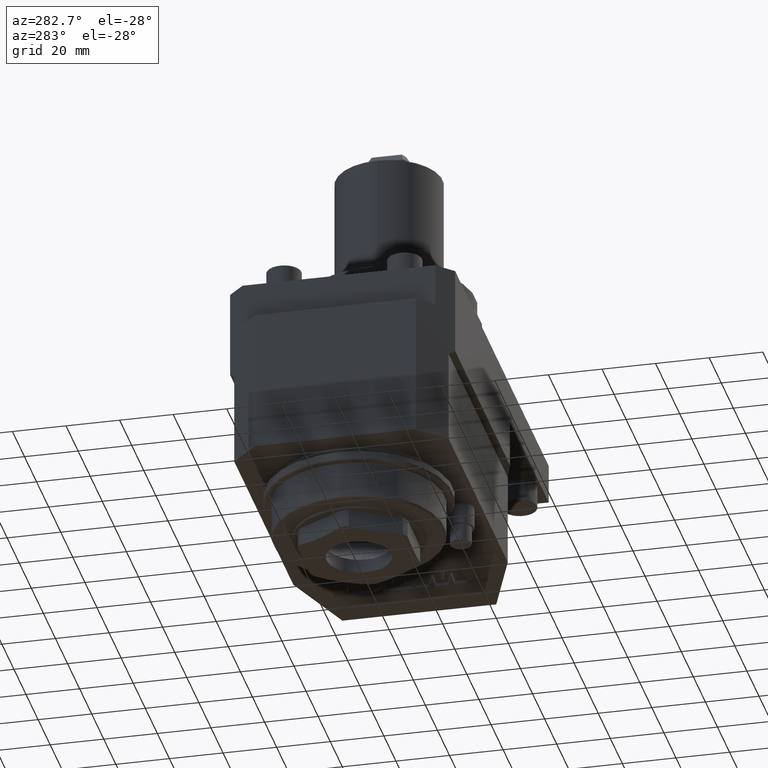
[diagram: clean part render]
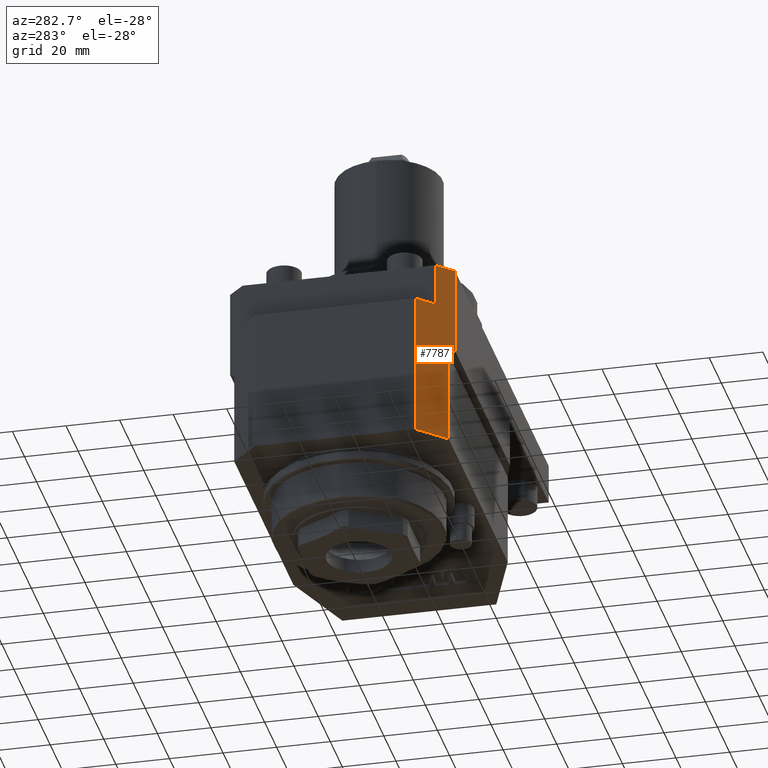
[diagram: same view with one face highlighted and labeled with its STEP entity id]
A machine part, auxiliary view. The second image highlights one B-rep face of the part: STEP entity #7787.
In plain terms, the highlighted planar face has unit normal (-0.7071, -0.7071, 0).
Its self-contained STEP definition (entity closure, byte-faithful):
#53 = PLANE('',#54);
#54 = AXIS2_PLACEMENT_3D('',#55,#56,#57);
#55 = CARTESIAN_POINT('',(50.,-42.,-70.));
#56 = DIRECTION('',(0.E+000,0.E+000,-1.));
#57 = DIRECTION('',(-1.,0.E+000,0.E+000));
#2521 = VERTEX_POINT('',#2522);
#2522 = CARTESIAN_POINT('',(-79.,-40.,-70.));
#2536 = PLANE('',#2537);
#2537 = AXIS2_PLACEMENT_3D('',#2538,#2539,#2540);
#2538 = CARTESIAN_POINT('',(246.05893602956,-40.,-70.));
#2539 = DIRECTION('',(0.E+000,1.,0.E+000));
#2540 = DIRECTION('',(0.E+000,-0.E+000,1.));
#2548 = EDGE_CURVE('',#2521,#2549,#2551,.T.);
#2549 = VERTEX_POINT('',#2550);
#2550 = CARTESIAN_POINT('',(-89.,-30.,-70.));
#2551 = SURFACE_CURVE('',#2552,(#2556,#2563),.PCURVE_S1.);
#2552 = LINE('',#2553,#2554);
#2553 = CARTESIAN_POINT('',(-13.5,-105.5,-70.));
#2554 = VECTOR('',#2555,1.);
#2555 = DIRECTION('',(-0.707106781187,0.707106781187,0.E+000));
#2556 = PCURVE('',#53,#2557);
#2557 = DEFINITIONAL_REPRESENTATION('',(#2558),#2562);
#2558 = LINE('',#2559,#2560);
#2559 = CARTESIAN_POINT('',(63.5,-63.5));
#2560 = VECTOR('',#2561,1.);
#2561 = DIRECTION('',(0.707106781187,0.707106781187));
#2562 = ( GEOMETRIC_REPRESENTATION_CONTEXT(2) 
PARAMETRIC_REPRESENTATION_CONTEXT() REPRESENTATION_CONTEXT('2D SPACE',''
  ) );
#2563 = PCURVE('',#2564,#2569);
#2564 = PLANE('',#2565);
#2565 = AXIS2_PLACEMENT_3D('',#2566,#2567,#2568);
#2566 = CARTESIAN_POINT('',(-77.,-42.,-246.0589360295));
#2567 = DIRECTION('',(-0.707106781187,-0.707106781187,0.E+000));
#2568 = DIRECTION('',(0.707106781187,-0.707106781187,0.E+000));
#2569 = DEFINITIONAL_REPRESENTATION('',(#2570),#2574);
#2570 = LINE('',#2571,#2572);
#2571 = CARTESIAN_POINT('',(89.802561210692,176.05893602956));
#2572 = VECTOR('',#2573,1.);
#2573 = DIRECTION('',(-1.,0.E+000));
#2574 = ( GEOMETRIC_REPRESENTATION_CONTEXT(2) 
PARAMETRIC_REPRESENTATION_CONTEXT() REPRESENTATION_CONTEXT('2D SPACE',''
  ) );
#2590 = PLANE('',#2591);
#2591 = AXIS2_PLACEMENT_3D('',#2592,#2593,#2594);
#2592 = CARTESIAN_POINT('',(-89.,-42.,-16.05));
#2593 = DIRECTION('',(-1.,0.E+000,0.E+000));
#2594 = DIRECTION('',(0.E+000,0.E+000,1.));
#7389 = PLANE('',#7390);
#7390 = AXIS2_PLACEMENT_3D('',#7391,#7392,#7393);
#7391 = CARTESIAN_POINT('',(0.E+000,-42.,0.E+000));
#7392 = DIRECTION('',(0.E+000,1.,0.E+000));
#7393 = DIRECTION('',(0.E+000,-0.E+000,1.));
#7540 = PLANE('',#7541);
#7541 = AXIS2_PLACEMENT_3D('',#7542,#7543,#7544);
#7542 = CARTESIAN_POINT('',(-83.,-42.,-5.000000000002E-002));
#7543 = DIRECTION('',(-2.125473979446E-017,0.E+000,1.));
#7544 = DIRECTION('',(1.,0.E+000,2.125473979446E-017));
#7669 = EDGE_CURVE('',#7670,#7672,#7674,.T.);
#7670 = VERTEX_POINT('',#7671);
#7671 = CARTESIAN_POINT('',(-77.,-42.,-33.));
#7672 = VERTEX_POINT('',#7673);
#7673 = CARTESIAN_POINT('',(-77.,-42.,-5.000000000008E-002));
#7674 = SURFACE_CURVE('',#7675,(#7679,#7686),.PCURVE_S1.);
#7675 = LINE('',#7676,#7677);
#7676 = CARTESIAN_POINT('',(-77.,-42.,0.E+000));
#7677 = VECTOR('',#7678,1.);
#7678 = DIRECTION('',(0.E+000,0.E+000,1.));
#7679 = PCURVE('',#7389,#7680);
#7680 = DEFINITIONAL_REPRESENTATION('',(#7681),#7685);
#7681 = LINE('',#7682,#7683);
#7682 = CARTESIAN_POINT('',(0.E+000,-77.));
#7683 = VECTOR('',#7684,1.);
#7684 = DIRECTION('',(1.,0.E+000));
#7685 = ( GEOMETRIC_REPRESENTATION_CONTEXT(2) 
PARAMETRIC_REPRESENTATION_CONTEXT() REPRESENTATION_CONTEXT('2D SPACE',''
  ) );
#7686 = PCURVE('',#2564,#7687);
#7687 = DEFINITIONAL_REPRESENTATION('',(#7688),#7692);
#7688 = LINE('',#7689,#7690);
#7689 = CARTESIAN_POINT('',(0.E+000,246.05893602956));
#7690 = VECTOR('',#7691,1.);
#7691 = DIRECTION('',(0.E+000,1.));
#7692 = ( GEOMETRIC_REPRESENTATION_CONTEXT(2) 
PARAMETRIC_REPRESENTATION_CONTEXT() REPRESENTATION_CONTEXT('2D SPACE',''
  ) );
#7710 = PLANE('',#7711);
#7711 = AXIS2_PLACEMENT_3D('',#7712,#7713,#7714);
#7712 = CARTESIAN_POINT('',(246.05893602956,-42.,-33.));
#7713 = DIRECTION('',(0.E+000,0.707106781187,0.707106781187));
#7714 = DIRECTION('',(0.E+000,-0.707106781187,0.707106781187));
#7787 = ADVANCED_FACE('',(#7788),#2564,.T.);
#7788 = FACE_BOUND('',#7789,.T.);
#7789 = EDGE_LOOP('',(#7790,#7813,#7834,#7835,#7858,#7886,#7914,#7935));
#7790 = ORIENTED_EDGE('',*,*,#7791,.T.);
#7791 = EDGE_CURVE('',#2521,#7792,#7794,.T.);
#7792 = VERTEX_POINT('',#7793);
#7793 = CARTESIAN_POINT('',(-79.,-40.,-35.));
#7794 = SURFACE_CURVE('',#7795,(#7799,#7806),.PCURVE_S1.);
#7795 = LINE('',#7796,#7797);
#7796 = CARTESIAN_POINT('',(-79.,-40.,-246.0589360295));
#7797 = VECTOR('',#7798,1.);
#7798 = DIRECTION('',(0.E+000,0.E+000,1.));
#7799 = PCURVE('',#2564,#7800);
#7800 = DEFINITIONAL_REPRESENTATION('',(#7801),#7805);
#7801 = LINE('',#7802,#7803);
#7802 = CARTESIAN_POINT('',(-2.828427124746,0.E+000));
#7803 = VECTOR('',#7804,1.);
#7804 = DIRECTION('',(0.E+000,1.));
#7805 = ( GEOMETRIC_REPRESENTATION_CONTEXT(2) 
PARAMETRIC_REPRESENTATION_CONTEXT() REPRESENTATION_CONTEXT('2D SPACE',''
  ) );
#7806 = PCURVE('',#2536,#7807);
#7807 = DEFINITIONAL_REPRESENTATION('',(#7808),#7812);
#7808 = LINE('',#7809,#7810);
#7809 = CARTESIAN_POINT('',(-176.0589360295,-325.0589360295));
#7810 = VECTOR('',#7811,1.);
#7811 = DIRECTION('',(1.,0.E+000));
#7812 = ( GEOMETRIC_REPRESENTATION_CONTEXT(2) 
PARAMETRIC_REPRESENTATION_CONTEXT() REPRESENTATION_CONTEXT('2D SPACE',''
  ) );
#7813 = ORIENTED_EDGE('',*,*,#7814,.T.);
#7814 = EDGE_CURVE('',#7792,#7670,#7815,.T.);
#7815 = SURFACE_CURVE('',#7816,(#7820,#7827),.PCURVE_S1.);
#7816 = LINE('',#7817,#7818);
#7817 = CARTESIAN_POINT('',(-148.0196453431,29.019645343188,
    -104.0196453431));
#7818 = VECTOR('',#7819,1.);
#7819 = DIRECTION('',(0.57735026919,-0.57735026919,0.57735026919));
#7820 = PCURVE('',#2564,#7821);
#7821 = DEFINITIONAL_REPRESENTATION('',(#7822),#7826);
#7822 = LINE('',#7823,#7824);
#7823 = CARTESIAN_POINT('',(-100.4369456392,142.03929068637));
#7824 = VECTOR('',#7825,1.);
#7825 = DIRECTION('',(0.816496580928,0.57735026919));
#7826 = ( GEOMETRIC_REPRESENTATION_CONTEXT(2) 
PARAMETRIC_REPRESENTATION_CONTEXT() REPRESENTATION_CONTEXT('2D SPACE',''
  ) );
#7827 = PCURVE('',#7710,#7828);
#7828 = DEFINITIONAL_REPRESENTATION('',(#7829),#7833);
#7829 = LINE('',#7830,#7831);
#7830 = CARTESIAN_POINT('',(-100.4369456392,-394.0785813727));
#7831 = VECTOR('',#7832,1.);
#7832 = DIRECTION('',(0.816496580928,0.57735026919));
#7833 = ( GEOMETRIC_REPRESENTATION_CONTEXT(2) 
PARAMETRIC_REPRESENTATION_CONTEXT() REPRESENTATION_CONTEXT('2D SPACE',''
  ) );
#7834 = ORIENTED_EDGE('',*,*,#7669,.T.);
#7835 = ORIENTED_EDGE('',*,*,#7836,.F.);
#7836 = EDGE_CURVE('',#7837,#7672,#7839,.T.);
#7837 = VERTEX_POINT('',#7838);
#7838 = CARTESIAN_POINT('',(-83.,-36.,-5.000000000002E-002));
#7839 = SURFACE_CURVE('',#7840,(#7844,#7851),.PCURVE_S1.);
#7840 = LINE('',#7841,#7842);
#7841 = CARTESIAN_POINT('',(-80.,-39.,-5.000000000002E-002));
#7842 = VECTOR('',#7843,1.);
#7843 = DIRECTION('',(0.707106781187,-0.707106781187,1.502937064102E-017
    ));
#7844 = PCURVE('',#2564,#7845);
#7845 = DEFINITIONAL_REPRESENTATION('',(#7846),#7850);
#7846 = LINE('',#7847,#7848);
#7847 = CARTESIAN_POINT('',(-4.242640687119,246.00893602956));
#7848 = VECTOR('',#7849,1.);
#7849 = DIRECTION('',(1.,1.502937064102E-017));
#7850 = ( GEOMETRIC_REPRESENTATION_CONTEXT(2) 
PARAMETRIC_REPRESENTATION_CONTEXT() REPRESENTATION_CONTEXT('2D SPACE',''
  ) );
#7851 = PCURVE('',#7540,#7852);
#7852 = DEFINITIONAL_REPRESENTATION('',(#7853),#7857);
#7853 = LINE('',#7854,#7855);
#7854 = CARTESIAN_POINT('',(3.,3.));
#7855 = VECTOR('',#7856,1.);
#7856 = DIRECTION('',(0.707106781187,-0.707106781187));
#7857 = ( GEOMETRIC_REPRESENTATION_CONTEXT(2) 
PARAMETRIC_REPRESENTATION_CONTEXT() REPRESENTATION_CONTEXT('2D SPACE',''
  ) );
#7858 = ORIENTED_EDGE('',*,*,#7859,.F.);
#7859 = EDGE_CURVE('',#7860,#7837,#7862,.T.);
#7860 = VERTEX_POINT('',#7861);
#7861 = CARTESIAN_POINT('',(-83.,-36.,-16.05));
#7862 = SURFACE_CURVE('',#7863,(#7867,#7874),.PCURVE_S1.);
#7863 = LINE('',#7864,#7865);
#7864 = CARTESIAN_POINT('',(-83.,-36.,-16.05));
#7865 = VECTOR('',#7866,1.);
#7866 = DIRECTION('',(0.E+000,0.E+000,1.));
#7867 = PCURVE('',#2564,#7868);
#7868 = DEFINITIONAL_REPRESENTATION('',(#7869),#7873);
#7869 = LINE('',#7870,#7871);
#7870 = CARTESIAN_POINT('',(-8.485281374239,230.00893602956));
#7871 = VECTOR('',#7872,1.);
#7872 = DIRECTION('',(0.E+000,1.));
#7873 = ( GEOMETRIC_REPRESENTATION_CONTEXT(2) 
PARAMETRIC_REPRESENTATION_CONTEXT() REPRESENTATION_CONTEXT('2D SPACE',''
  ) );
#7874 = PCURVE('',#7875,#7880);
#7875 = PLANE('',#7876);
#7876 = AXIS2_PLACEMENT_3D('',#7877,#7878,#7879);
#7877 = CARTESIAN_POINT('',(-83.,-42.,-16.05));
#7878 = DIRECTION('',(-1.,0.E+000,0.E+000));
#7879 = DIRECTION('',(0.E+000,0.E+000,1.));
#7880 = DEFINITIONAL_REPRESENTATION('',(#7881),#7885);
#7881 = LINE('',#7882,#7883);
#7882 = CARTESIAN_POINT('',(0.E+000,6.));
#7883 = VECTOR('',#7884,1.);
#7884 = DIRECTION('',(1.,0.E+000));
#7885 = ( GEOMETRIC_REPRESENTATION_CONTEXT(2) 
PARAMETRIC_REPRESENTATION_CONTEXT() REPRESENTATION_CONTEXT('2D SPACE',''
  ) );
#7886 = ORIENTED_EDGE('',*,*,#7887,.F.);
#7887 = EDGE_CURVE('',#7888,#7860,#7890,.T.);
#7888 = VERTEX_POINT('',#7889);
#7889 = CARTESIAN_POINT('',(-89.,-30.,-16.05));
#7890 = SURFACE_CURVE('',#7891,(#7895,#7902),.PCURVE_S1.);
#7891 = LINE('',#7892,#7893);
#7892 = CARTESIAN_POINT('',(-83.,-36.,-16.05));
#7893 = VECTOR('',#7894,1.);
#7894 = DIRECTION('',(0.707106781187,-0.707106781187,0.E+000));
#7895 = PCURVE('',#2564,#7896);
#7896 = DEFINITIONAL_REPRESENTATION('',(#7897),#7901);
#7897 = LINE('',#7898,#7899);
#7898 = CARTESIAN_POINT('',(-8.485281374239,230.00893602956));
#7899 = VECTOR('',#7900,1.);
#7900 = DIRECTION('',(1.,0.E+000));
#7901 = ( GEOMETRIC_REPRESENTATION_CONTEXT(2) 
PARAMETRIC_REPRESENTATION_CONTEXT() REPRESENTATION_CONTEXT('2D SPACE',''
  ) );
#7902 = PCURVE('',#7903,#7908);
#7903 = PLANE('',#7904);
#7904 = AXIS2_PLACEMENT_3D('',#7905,#7906,#7907);
#7905 = CARTESIAN_POINT('',(-89.,-42.,-16.05));
#7906 = DIRECTION('',(0.E+000,0.E+000,1.));
#7907 = DIRECTION('',(1.,0.E+000,-0.E+000));
#7908 = DEFINITIONAL_REPRESENTATION('',(#7909),#7913);
#7909 = LINE('',#7910,#7911);
#7910 = CARTESIAN_POINT('',(6.,6.));
#7911 = VECTOR('',#7912,1.);
#7912 = DIRECTION('',(0.707106781187,-0.707106781187));
#7913 = ( GEOMETRIC_REPRESENTATION_CONTEXT(2) 
PARAMETRIC_REPRESENTATION_CONTEXT() REPRESENTATION_CONTEXT('2D SPACE',''
  ) );
#7914 = ORIENTED_EDGE('',*,*,#7915,.F.);
#7915 = EDGE_CURVE('',#2549,#7888,#7916,.T.);
#7916 = SURFACE_CURVE('',#7917,(#7921,#7928),.PCURVE_S1.);
#7917 = LINE('',#7918,#7919);
#7918 = CARTESIAN_POINT('',(-89.,-30.,-246.0589360295));
#7919 = VECTOR('',#7920,1.);
#7920 = DIRECTION('',(0.E+000,0.E+000,1.));
#7921 = PCURVE('',#2564,#7922);
#7922 = DEFINITIONAL_REPRESENTATION('',(#7923),#7927);
#7923 = LINE('',#7924,#7925);
#7924 = CARTESIAN_POINT('',(-16.97056274847,0.E+000));
#7925 = VECTOR('',#7926,1.);
#7926 = DIRECTION('',(0.E+000,1.));
#7927 = ( GEOMETRIC_REPRESENTATION_CONTEXT(2) 
PARAMETRIC_REPRESENTATION_CONTEXT() REPRESENTATION_CONTEXT('2D SPACE',''
  ) );
#7928 = PCURVE('',#2590,#7929);
#7929 = DEFINITIONAL_REPRESENTATION('',(#7930),#7934);
#7930 = LINE('',#7931,#7932);
#7931 = CARTESIAN_POINT('',(-230.0089360295,12.));
#7932 = VECTOR('',#7933,1.);
#7933 = DIRECTION('',(1.,0.E+000));
#7934 = ( GEOMETRIC_REPRESENTATION_CONTEXT(2) 
PARAMETRIC_REPRESENTATION_CONTEXT() REPRESENTATION_CONTEXT('2D SPACE',''
  ) );
#7935 = ORIENTED_EDGE('',*,*,#2548,.F.);